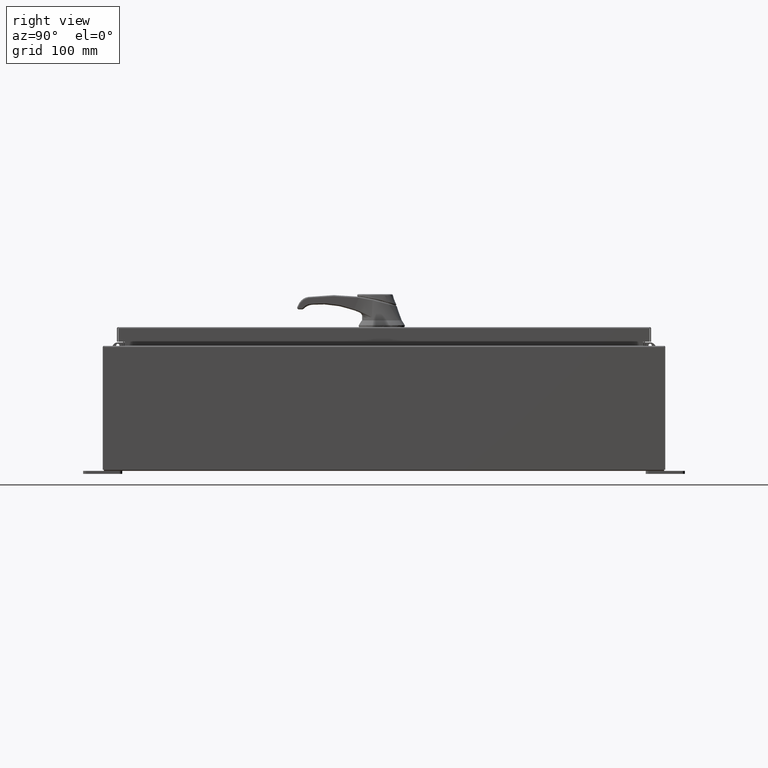
[diagram: clean part render]
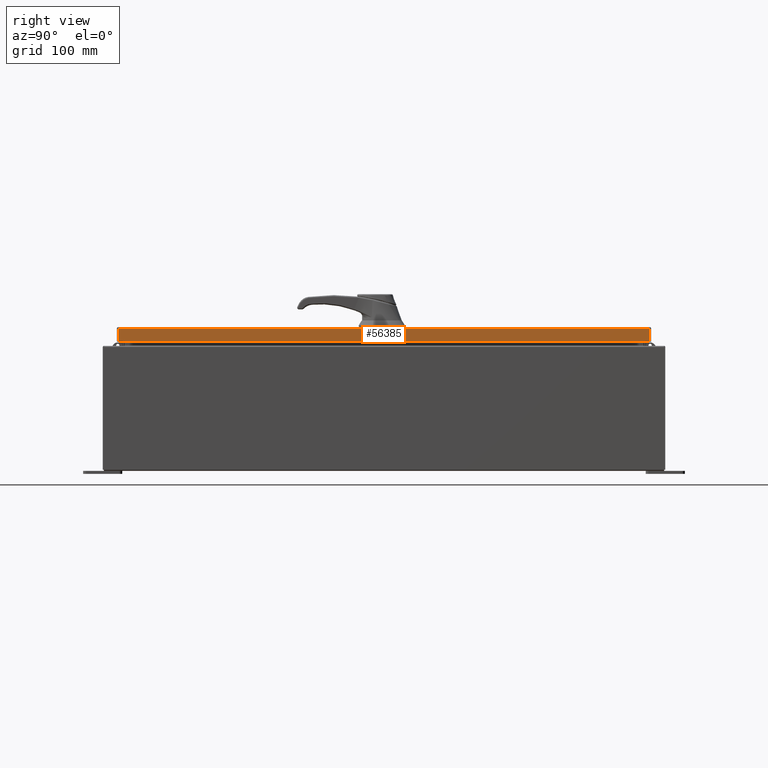
[diagram: same view with one face highlighted and labeled with its STEP entity id]
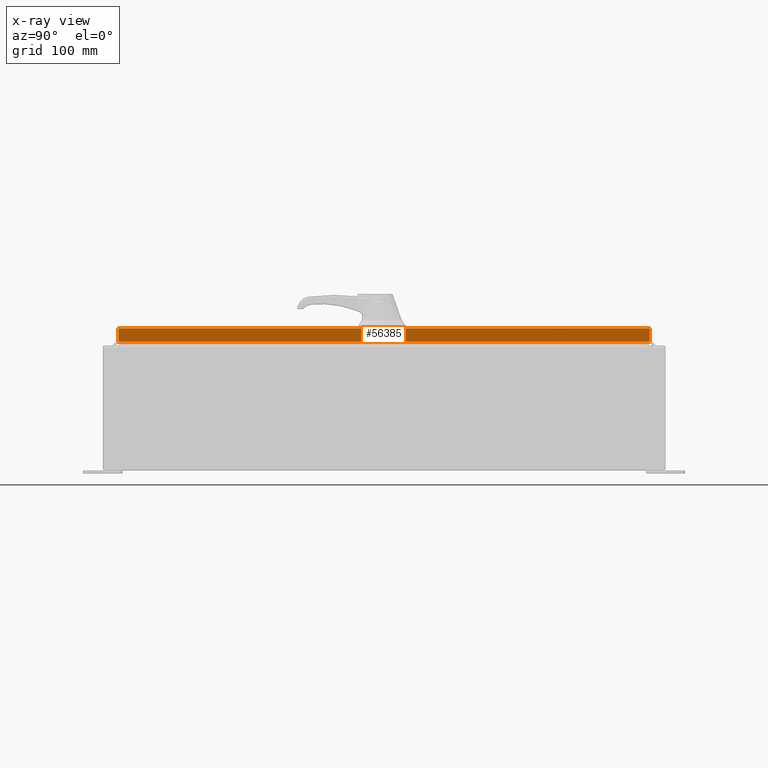
[diagram: x-ray of the same camera — body ghosted, the highlighted face saturated]
A machine part, right view. The second image highlights one B-rep face of the part: STEP entity #56385.
The next image is the same camera in x-ray: the body ghosted, the highlighted face saturated — about 0% of this face is hidden behind the body in this view.
In plain terms, the highlighted planar face has unit normal (1, 0, 0).
Its self-contained STEP definition (entity closure, byte-faithful):
#160 = LINE ( 'NONE', #8929, #19175 ) ;
#1257 = VECTOR ( 'NONE', #52298, 39.37007874015748100 ) ;
#2775 = FACE_OUTER_BOUND ( 'NONE', #89424, .T. ) ;
#3328 = EDGE_CURVE ( 'NONE', #101759, #23615, #18739, .T. ) ;
#5329 = CARTESIAN_POINT ( 'NONE',  ( 11.07799999999999600, -17.00515786437626500, -0.07469999999999980800 ) ) ;
#8929 = CARTESIAN_POINT ( 'NONE',  ( 11.07799999999999800, -17.09399999999999800, -0.9376999999999997600 ) ) ;
#12455 = DIRECTION ( 'NONE',  ( 2.532419924601866100E-015, 0.0000000000000000000, -1.000000000000000000 ) ) ;
#15518 = CARTESIAN_POINT ( 'NONE',  ( 11.07799999999999600, 17.00515786437627600, -0.08770000000000008300 ) ) ;
#16368 = EDGE_CURVE ( 'NONE', #101759, #52451, #160, .T. ) ;
#18739 = LINE ( 'NONE', #39135, #115999 ) ;
#19175 = VECTOR ( 'NONE', #112609, 39.37007874015748100 ) ;
#20510 = VECTOR ( 'NONE', #66656, 39.37007874015748100 ) ;
#21033 = AXIS2_PLACEMENT_3D ( 'NONE', #106254, #68873, #12455 ) ;
#23615 = VERTEX_POINT ( 'NONE', #15518 ) ;
#33081 = CARTESIAN_POINT ( 'NONE',  ( 11.07799999999999600, -17.00515786437626500, -0.08770000000000008300 ) ) ;
#39135 = CARTESIAN_POINT ( 'NONE',  ( 11.07799999999999600, 17.00515786437627600, 1.470613442758536900E-013 ) ) ;
#43466 = EDGE_CURVE ( 'NONE', #23615, #93540, #73614, .T. ) ;
#45216 = EDGE_CURVE ( 'NONE', #52451, #93540, #73369, .T. ) ;
#52298 = DIRECTION ( 'NONE',  ( -2.532419924601866100E-015, -6.982962677686265900E-015, 1.000000000000000000 ) ) ;
#52451 = VERTEX_POINT ( 'NONE', #60293 ) ;
#56385 = ADVANCED_FACE ( 'NONE', ( #2775 ), #87380, .T. ) ;
#57174 = CARTESIAN_POINT ( 'NONE',  ( 11.07799999999999600, 0.0000000000000000000, -0.08770000000000008300 ) ) ;
#60293 = CARTESIAN_POINT ( 'NONE',  ( 11.07799999999999800, -17.00515786437625800, -0.9376999999999997600 ) ) ;
#66656 = DIRECTION ( 'NONE',  ( 0.0000000000000000000, -1.000000000000000000, 0.0000000000000000000 ) ) ;
#68873 = DIRECTION ( 'NONE',  ( 1.000000000000000000, 0.0000000000000000000, 2.532419924601866100E-015 ) ) ;
#73369 = LINE ( 'NONE', #5329, #1257 ) ;
#73614 = LINE ( 'NONE', #57174, #20510 ) ;
#77579 = ORIENTED_EDGE ( 'NONE', *, *, #3328, .T. ) ;
#81343 = CARTESIAN_POINT ( 'NONE',  ( 11.07799999999999800, 17.00515786437628000, -0.9376999999999997600 ) ) ;
#83690 = ORIENTED_EDGE ( 'NONE', *, *, #16368, .F. ) ;
#87380 = PLANE ( 'NONE',  #21033 ) ;
#87390 = ORIENTED_EDGE ( 'NONE', *, *, #45216, .F. ) ;
#89424 = EDGE_LOOP ( 'NONE', ( #87390, #83690, #77579, #118865 ) ) ;
#93540 = VERTEX_POINT ( 'NONE', #33081 ) ;
#101759 = VERTEX_POINT ( 'NONE', #81343 ) ;
#106254 = CARTESIAN_POINT ( 'NONE',  ( 11.07799999999999600, 0.0000000000000000000, 2.831496158075104400E-014 ) ) ;
#112609 = DIRECTION ( 'NONE',  ( 0.0000000000000000000, -1.000000000000000000, 0.0000000000000000000 ) ) ;
#115241 = DIRECTION ( 'NONE',  ( -2.532419924601866100E-015, -6.982962677686265900E-015, 1.000000000000000000 ) ) ;
#115999 = VECTOR ( 'NONE', #115241, 39.37007874015748100 ) ;
#118865 = ORIENTED_EDGE ( 'NONE', *, *, #43466, .T. ) ;